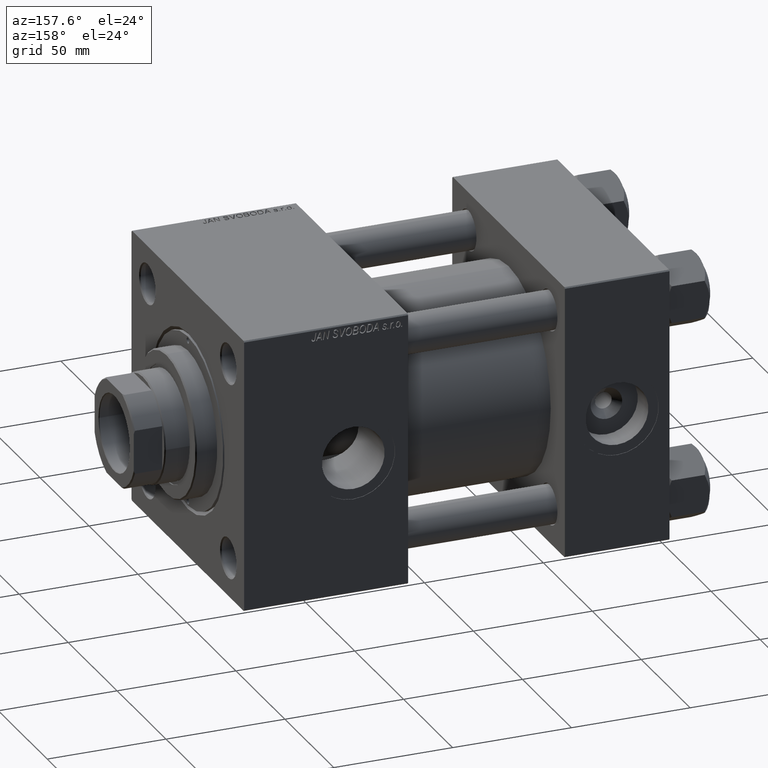
[diagram: clean part render]
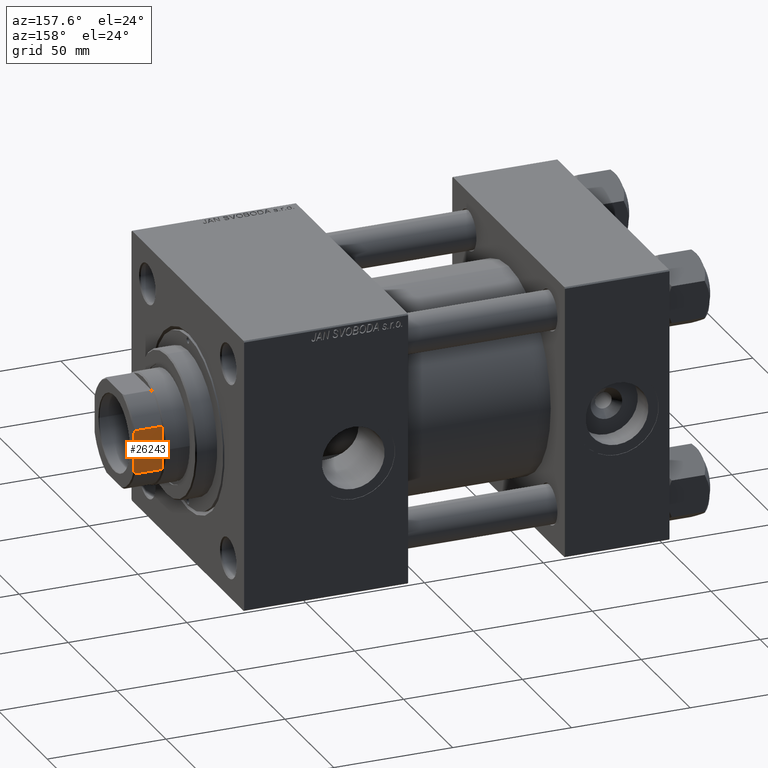
[diagram: same view with one face highlighted and labeled with its STEP entity id]
A machine part, auxiliary view. The second image highlights one B-rep face of the part: STEP entity #26243.
In plain terms, the highlighted planar face has unit normal (0, -1, -0).
Its self-contained STEP definition (entity closure, byte-faithful):
#178 = DIRECTION ( 'NONE',  ( -1.734723475976806848E-16, 1.000000000000000000, 0.000000000000000000 ) ) ;
#310 = DIRECTION ( 'NONE',  ( 1.734723475976807094E-16, -1.000000000000000000, 0.000000000000000000 ) ) ;
#1085 = CARTESIAN_POINT ( 'NONE',  ( -20.00000000000000355, 20.00000000000000000, 166.0000000000000000 ) ) ;
#1243 = CARTESIAN_POINT ( 'NONE',  ( -20.00000000000000000, -9.165151389911677882, -0.001000000000001000089 ) ) ;
#1347 = LINE ( 'NONE', #1085, #47999 ) ;
#2979 = VERTEX_POINT ( 'NONE', #29701 ) ;
#4713 = FACE_OUTER_BOUND ( 'NONE', #17891, .T. ) ;
#5330 = CARTESIAN_POINT ( 'NONE',  ( -20.00000000000000000, 8.318618722654573361, 165.8426607129352703 ) ) ;
#6319 = B_SPLINE_CURVE_WITH_KNOTS ( 'NONE', 3,
 ( #29124, #5330, #28863, #45436 ),
 .UNSPECIFIED., .F., .F.,
 ( 4, 4 ),
 ( 0.000000000000000000, 0.001369799431183961035 ),
 .UNSPECIFIED. ) ;
#6419 = LINE ( 'NONE', #10962, #38939 ) ;
#8041 = EDGE_CURVE ( 'NONE', #37025, #25656, #1347, .T. ) ;
#8325 = AXIS2_PLACEMENT_3D ( 'NONE', #37039, #21008, #178 ) ;
#9151 = LINE ( 'NONE', #33981, #12424 ) ;
#10962 = CARTESIAN_POINT ( 'NONE',  ( -20.00000000000000355, 20.00000000000000000, 154.0000000000000000 ) ) ;
#11905 = EDGE_CURVE ( 'NONE', #42901, #14559, #29309, .T. ) ;
#12424 = VECTOR ( 'NONE', #21690, 1000.000000000000000 ) ;
#13042 = B_SPLINE_CURVE_WITH_KNOTS ( 'NONE', 3,
 ( #42478, #33943, #50239, #26184 ),
 .UNSPECIFIED., .F., .F.,
 ( 4, 4 ),
 ( 0.000000000000000000, 0.001369799431183950193 ),
 .UNSPECIFIED. ) ;
#13663 = EDGE_CURVE ( 'NONE', #31588, #2979, #9151, .T. ) ;
#13993 = EDGE_CURVE ( 'NONE', #37025, #2979, #6319, .T. ) ;
#14559 = VERTEX_POINT ( 'NONE', #16557 ) ;
#16289 = CARTESIAN_POINT ( 'NONE',  ( -20.00000000000000000, -9.165151389911677882, 154.0000000000000284 ) ) ;
#16557 = CARTESIAN_POINT ( 'NONE',  ( -20.00000000000000000, -9.165151389911677882, 165.5000000000000853 ) ) ;
#17187 = EDGE_CURVE ( 'NONE', #14559, #25656, #13042, .T. ) ;
#17891 = EDGE_LOOP ( 'NONE', ( #45878, #31864, #36554, #36922, #22250, #50012 ) ) ;
#21008 = DIRECTION ( 'NONE',  ( 1.000000000000000000, 1.734723475976806848E-16, -0.000000000000000000 ) ) ;
#21690 = DIRECTION ( 'NONE',  ( -0.000000000000000000, -0.000000000000000000, 1.000000000000000000 ) ) ;
#22250 = ORIENTED_EDGE ( 'NONE', *, *, #13663, .F. ) ;
#23849 = EDGE_CURVE ( 'NONE', #31588, #42901, #6419, .T. ) ;
#25656 = VERTEX_POINT ( 'NONE', #51135 ) ;
#26184 = CARTESIAN_POINT ( 'NONE',  ( -20.00000000000000000, -7.889866919030001924, 166.0000000000000000 ) ) ;
#26243 = ADVANCED_FACE ( 'NONE', ( #4713 ), #49073, .F. ) ;
#28863 = CARTESIAN_POINT ( 'NONE',  ( -20.00000000000000000, 8.743570658524443928, 165.6756296011925258 ) ) ;
#29124 = CARTESIAN_POINT ( 'NONE',  ( -20.00000000000000000, 7.889866919029994818, 166.0000000000000000 ) ) ;
#29309 = LINE ( 'NONE', #1243, #30251 ) ;
#29701 = CARTESIAN_POINT ( 'NONE',  ( -19.99999999999999645, 9.165151389911683211, 165.5000000000000853 ) ) ;
#29922 = CARTESIAN_POINT ( 'NONE',  ( -20.00000000000000000, 7.889866919029994818, 166.0000000000000000 ) ) ;
#30251 = VECTOR ( 'NONE', #33313, 1000.000000000000000 ) ;
#31588 = VERTEX_POINT ( 'NONE', #51318 ) ;
#31864 = ORIENTED_EDGE ( 'NONE', *, *, #17187, .T. ) ;
#33313 = DIRECTION ( 'NONE',  ( -0.000000000000000000, -0.000000000000000000, 1.000000000000000000 ) ) ;
#33943 = CARTESIAN_POINT ( 'NONE',  ( -20.00000000000000000, -8.743570658524440375, 165.6756296011925258 ) ) ;
#33981 = CARTESIAN_POINT ( 'NONE',  ( -19.99999999999999645, 9.165151389911683211, -0.001000000000001000089 ) ) ;
#36554 = ORIENTED_EDGE ( 'NONE', *, *, #8041, .F. ) ;
#36922 = ORIENTED_EDGE ( 'NONE', *, *, #13993, .T. ) ;
#37025 = VERTEX_POINT ( 'NONE', #29922 ) ;
#37039 = CARTESIAN_POINT ( 'NONE',  ( -20.00000000000000355, 20.00000000000000000, 166.0000000000000000 ) ) ;
#38939 = VECTOR ( 'NONE', #51305, 1000.000000000000000 ) ;
#42478 = CARTESIAN_POINT ( 'NONE',  ( -20.00000000000000000, -9.165151389911677882, 165.5000000000000853 ) ) ;
#42901 = VERTEX_POINT ( 'NONE', #16289 ) ;
#45436 = CARTESIAN_POINT ( 'NONE',  ( -19.99999999999999645, 9.165151389911683211, 165.5000000000000853 ) ) ;
#45878 = ORIENTED_EDGE ( 'NONE', *, *, #11905, .T. ) ;
#47999 = VECTOR ( 'NONE', #310, 1000.000000000000000 ) ;
#49073 = PLANE ( 'NONE',  #8325 ) ;
#50012 = ORIENTED_EDGE ( 'NONE', *, *, #23849, .T. ) ;
#50239 = CARTESIAN_POINT ( 'NONE',  ( -20.00000000000000000, -8.318618722654584019, 165.8426607129352988 ) ) ;
#51135 = CARTESIAN_POINT ( 'NONE',  ( -20.00000000000000000, -7.889866919030001924, 166.0000000000000000 ) ) ;
#51305 = DIRECTION ( 'NONE',  ( 1.734723475976807094E-16, -1.000000000000000000, 0.000000000000000000 ) ) ;
#51318 = CARTESIAN_POINT ( 'NONE',  ( -19.99999999999999645, 9.165151389911681434, 154.0000000000000284 ) ) ;